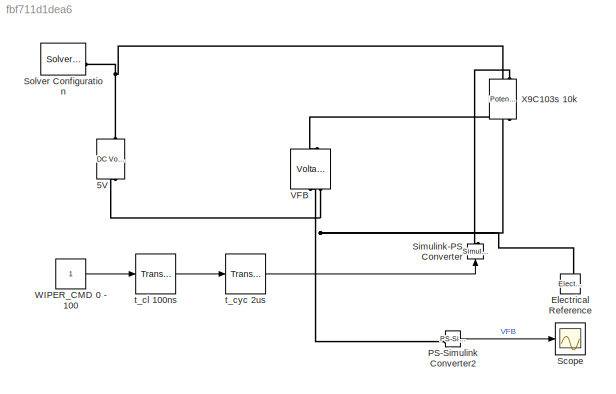
MODEL slx_fbf711d1dea6
KIND model
CONFIG AbsTol = auto
CONFIG EnableMultiTasking = off
CONFIG FixedStep = auto
CONFIG MaxStep = auto
CONFIG MinStep = auto
CONFIG RelTol = 1e-3
CONFIG SampleTimeConstraint = Unconstrained
CONFIG SolverName = ode23t
CONFIG StartTime = 0.0
CONFIG StopTime = 10.0
BLOCK [Reference] 5V  REF=fl_lib/Electrical/Electrical Sources/DC Voltage Source
  NameLocation = right
  SourceBlock = fl_lib/Electrical/Electrical Sources/DC Voltage Source
  SourceType = DC Voltage Source
BLOCK [Reference] Electrical Reference  REF=fl_lib/Electrical/Electrical Elements/Electrical Reference
  LibrarySourceBlock = ee_lib/Connectors &\nReferences/Electrical Reference
  NameLocation = right
  SourceBlock = fl_lib/Electrical/Electrical Elements/Electrical Reference
  SourceType = Electrical Reference
BLOCK [Reference] PS-Simulink Converter2  REF=nesl_utility/PS-Simulink
Converter
  SourceBlock = nesl_utility/PS-Simulink\nConverter
  SourceType = PS-Simulink\nConverter
BLOCK [Scope] Scope
  Floating = off
  NumInputPorts = 1
  ScopeSpecificationString = Simulink.scopes.TimeScopeBlockCfg('CurrentConfiguration', extmgr.ConfigurationSet(extmgr.Configuration('Core','General UI',true),extmgr.Configuration('Core','Source UI',true),extmgr.Configuration('Sources','WiredSimulink',true),extmgr.Configuration('Visuals','Time Domain',true,'SerializedDisplays',{struct('MinYLimReal','98.484','MaxYLimReal','99.724','YLabelReal','','MinYLimMag','98.484','MaxYLimM...<+1337ch>
BLOCK [Reference] Simulink-PS Converter  REF=nesl_utility/Simulink-PS
Converter
  NameLocation = right
  SourceBlock = nesl_utility/Simulink-PS\nConverter
  SourceType = Simulink-PS\nConverter
BLOCK [Reference] Solver Configuration  REF=nesl_utility/Solver
Configuration
  SourceBlock = nesl_utility/Solver\nConfiguration
  SourceType = Solver\nConfiguration
BLOCK [Reference] VFB  REF=fl_lib/Electrical/Electrical Sensors/Voltage Sensor
  NameLocation = right
  SourceBlock = fl_lib/Electrical/Electrical Sensors/Voltage Sensor
  SourceType = Voltage Sensor
BLOCK [Constant] WIPER_CMD 0 - 100
BLOCK [Reference] X9C103s 10k  REF=ee_lib/Passive/Potentiometer
  NameLocation = right
  SourceBlock = ee_lib/Passive/Potentiometer
  SourceType = Potentiometer
BLOCK [TransportDelay] t_cl 100ns
  DelayTime = 100e-9
BLOCK [TransportDelay] t_cyc 2us
  DelayTime = 2e-6
LINE PS-Simulink Converter2:1 -> Scope:1
LINE WIPER_CMD 0 - 100:1 -> t_cl 100ns:1
LINE t_cl 100ns:1 -> t_cyc 2us:1
LINE t_cyc 2us:1 -> Simulink-PS Converter:1
PNET net1: 5V:LConn1 -- Solver Configuration:RConn1 -- X9C103s 10k:RConn1
PNET net2: 5V:RConn1 -- Electrical Reference:LConn1 -- VFB:RConn2 -- X9C103s 10k:LConn1
PLINE PS-Simulink Converter2:LConn1 -- VFB:RConn1
PLINE Simulink-PS Converter:RConn1 -- X9C103s 10k:RConn2
PLINE VFB:LConn1 -- X9C103s 10k:LConn2
note: PNET lines group multi-terminal physical nets as a canonical sorted terminal list (undirected conserving connections); 2-terminal nets keep the pairwise PLINE form
